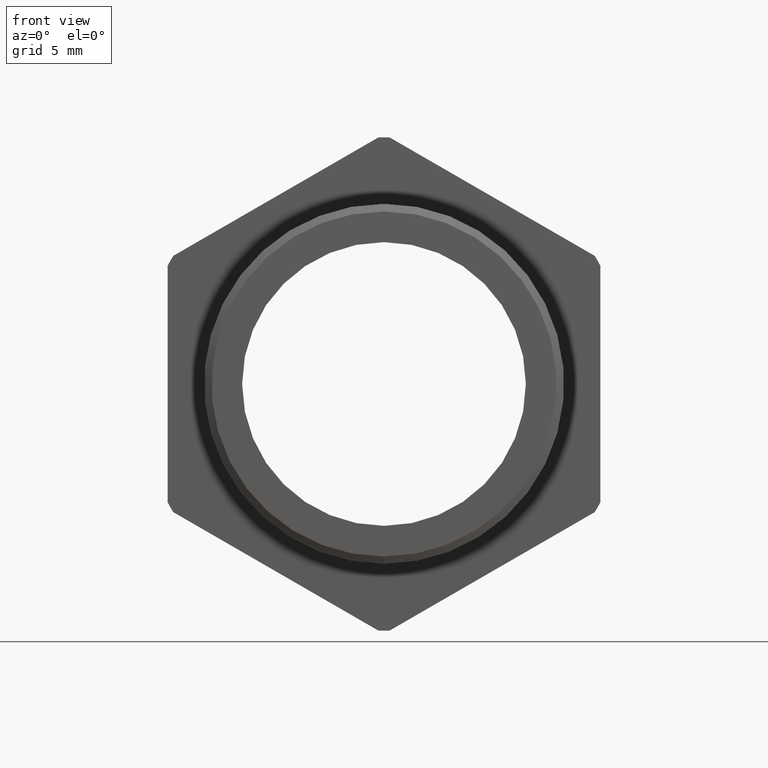
[diagram: clean part render]
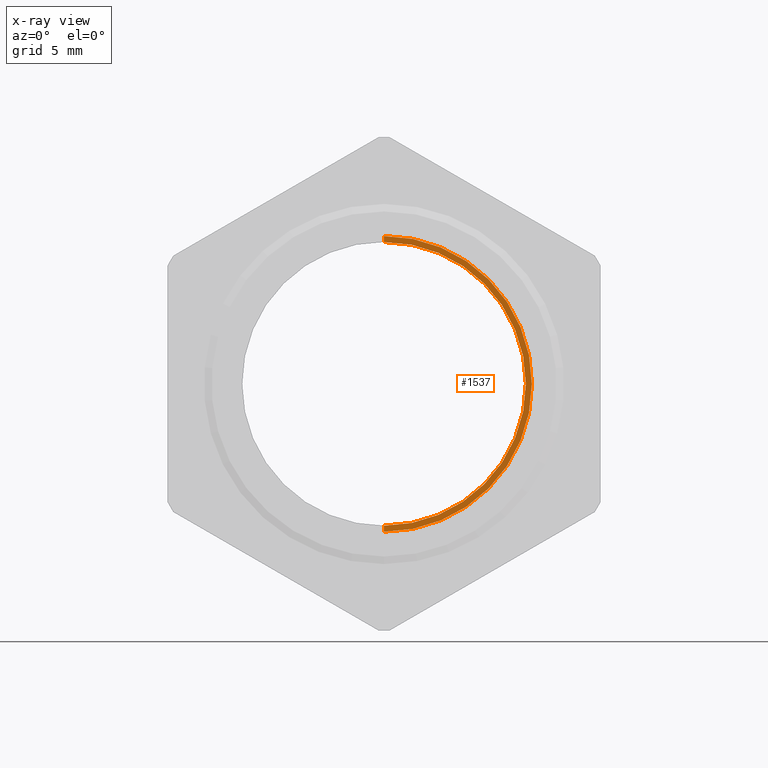
[diagram: x-ray — body ghosted, one internal face saturated and labeled with its STEP entity id]
A machine part, front view, then the same camera in x-ray: the body is ghosted and one INTERNAL B-rep face — a face not visible from any outside direction — is saturated and labeled: STEP entity #1537.
In plain terms, the highlighted conical surface has half-angle 88.312 deg.
Its self-contained STEP definition (entity closure, byte-faithful):
#28 = VERTEX_POINT ( 'NONE', #2835 ) ;
#37 = VERTEX_POINT ( 'NONE', #2883 ) ;
#64 = EDGE_CURVE ( 'NONE', #1389, #37, #2946, .T. ) ;
#68 = EDGE_CURVE ( 'NONE', #1390, #28, #2942, .T. ) ;
#71 = EDGE_CURVE ( 'NONE', #1390, #1389, #2933, .T. ) ;
#1389 = VERTEX_POINT ( 'NONE', #5209 ) ;
#1390 = VERTEX_POINT ( 'NONE', #5208 ) ;
#1529 = ORIENTED_EDGE ( 'NONE', *, *, #64, .T. ) ;
#1532 = ORIENTED_EDGE ( 'NONE', *, *, #71, .T. ) ;
#1536 = EDGE_LOOP ( 'NONE', ( #1538, #1532, #1529, #1609 ) ) ;
#1537 = ADVANCED_FACE ( 'NONE', ( #5474 ), #5473, .F. ) ;
#1538 = ORIENTED_EDGE ( 'NONE', *, *, #68, .F. ) ;
#1607 = EDGE_CURVE ( 'NONE', #28, #37, #5598, .T. ) ;
#1609 = ORIENTED_EDGE ( 'NONE', *, *, #1607, .F. ) ;
#2835 = CARTESIAN_POINT ( 'NONE',  ( 3.305482958008340700E-017, 0.3738999999999996800, 0.2699131668257122600 ) ) ;
#2883 = CARTESIAN_POINT ( 'NONE',  ( 0.0000000000000000000, 0.3738999999999996800, -0.2699131668257122600 ) ) ;
#2929 = DIRECTION ( 'NONE',  ( 0.0000000000000000000, 0.0000000000000000000, -1.000000000000000000 ) ) ;
#2930 = DIRECTION ( 'NONE',  ( -0.0000000000000000000, 1.000000000000000000, -0.0000000000000000000 ) ) ;
#2931 = CARTESIAN_POINT ( 'NONE',  ( 0.0000000000000000000, 0.3742219653570459900, 0.0000000000000000000 ) ) ;
#2932 = AXIS2_PLACEMENT_3D ( 'NONE', #2931, #2930, #2929 ) ;
#2933 = CIRCLE ( 'NONE', #2932, 0.2589880461203001900 ) ;
#2939 = DIRECTION ( 'NONE',  ( 1.224115347344792500E-016, -0.02945739864719126200, 0.9995660366703845700 ) ) ;
#2940 = VECTOR ( 'NONE', #2939, 39.37007874015747400 ) ;
#2941 = CARTESIAN_POINT ( 'NONE',  ( 2.931775621842221100E-017, 0.3747992980933291300, 0.2393976470508425700 ) ) ;
#2942 = LINE ( 'NONE', #2941, #2940 ) ;
#2943 = DIRECTION ( 'NONE',  ( 0.0000000000000000000, -0.02945739864719126200, -0.9995660366703845700 ) ) ;
#2944 = VECTOR ( 'NONE', #2943, 39.37007874015747400 ) ;
#2945 = CARTESIAN_POINT ( 'NONE',  ( 0.0000000000000000000, 0.3747992980933291300, -0.2393976470508425700 ) ) ;
#2946 = LINE ( 'NONE', #2945, #2944 ) ;
#5208 = CARTESIAN_POINT ( 'NONE',  ( 3.171688816986526800E-017, 0.3742219653570459900, 0.2589880461203001900 ) ) ;
#5209 = CARTESIAN_POINT ( 'NONE',  ( 0.0000000000000000000, 0.3742219653570459900, -0.2589880461203001900 ) ) ;
#5468 = DIRECTION ( 'NONE',  ( 0.0000000000000000000, 0.0000000000000000000, -1.000000000000000000 ) ) ;
#5469 = DIRECTION ( 'NONE',  ( 0.0000000000000000000, -1.000000000000000000, 0.0000000000000000000 ) ) ;
#5470 = CARTESIAN_POINT ( 'NONE',  ( 0.0000000000000000000, 0.3747992980933291300, 0.0000000000000000000 ) ) ;
#5471 = AXIS2_PLACEMENT_3D ( 'NONE', #5470, #5469, #5468 ) ;
#5473 = CONICAL_SURFACE ( 'NONE', #5471, 0.2393976470508425700, 1.541334666264296200 ) ;
#5474 = FACE_OUTER_BOUND ( 'NONE', #1536, .T. ) ;
#5594 = DIRECTION ( 'NONE',  ( 0.0000000000000000000, 0.0000000000000000000, 1.000000000000000000 ) ) ;
#5595 = DIRECTION ( 'NONE',  ( -0.0000000000000000000, 1.000000000000000000, -0.0000000000000000000 ) ) ;
#5596 = CARTESIAN_POINT ( 'NONE',  ( 0.0000000000000000000, 0.3738999999999996800, 0.0000000000000000000 ) ) ;
#5597 = AXIS2_PLACEMENT_3D ( 'NONE', #5596, #5595, #5594 ) ;
#5598 = CIRCLE ( 'NONE', #5597, 0.2699131668257122000 ) ;